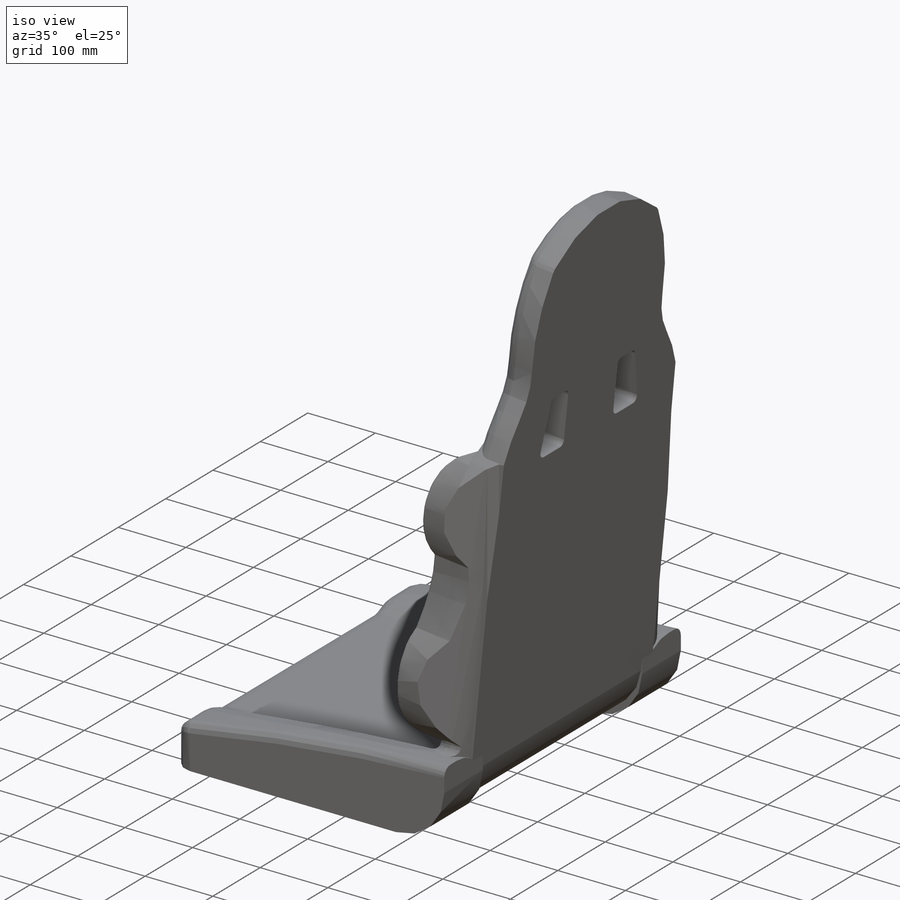
[diagram: iso view]
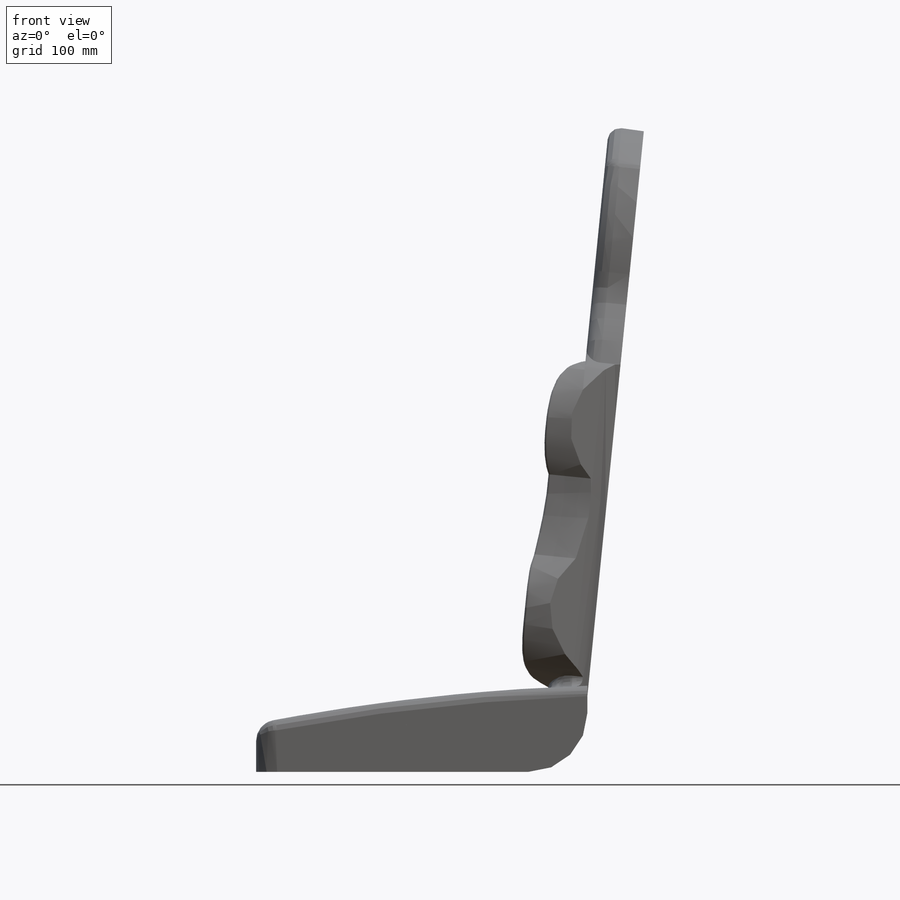
[diagram: front view]
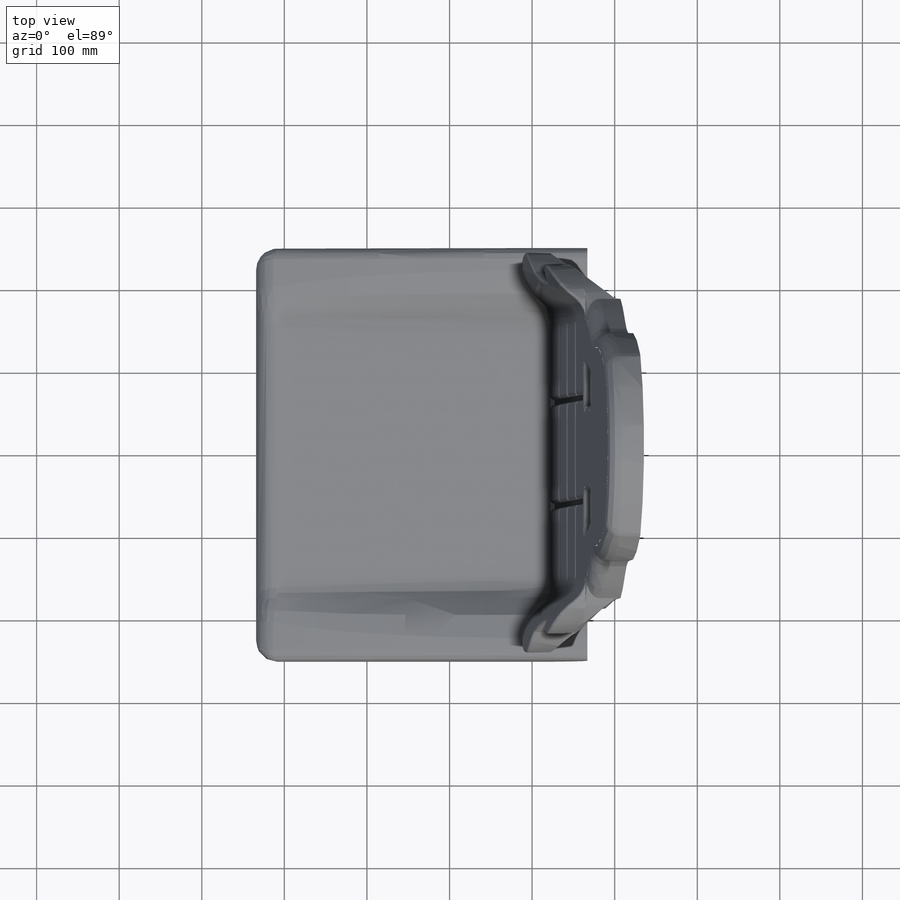
[diagram: top view]
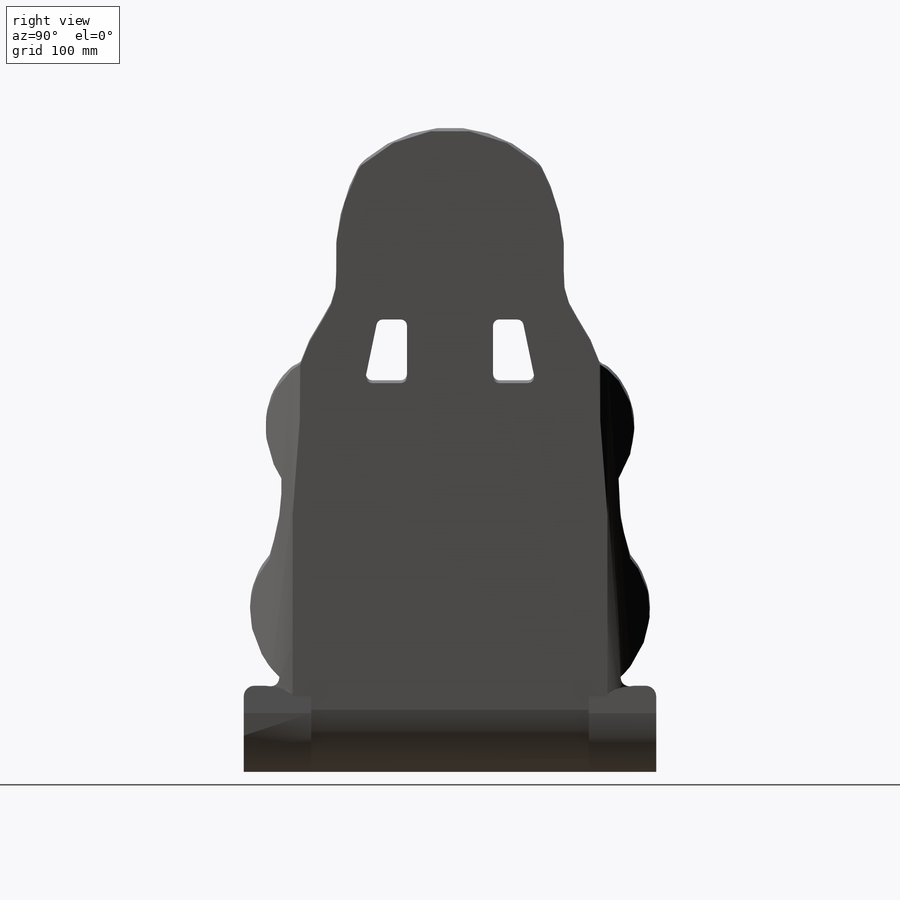
[diagram: right view]
SOLIDWORKS PART (.sldprt)
format: sldprt  version: not decoded by parser v0  size: 1,002,496 bytes
history: native  units: mm
features: fillet x21, sketch x7, extrude x3, plane x3, cut_extrude x3, chamfer x2, material x1 (+12 scaffold rows collapsed)
feature tree (52):
  scaffold x12  (default folders/planes/origin — collapsed)
  material  "Material <not specified>"
  sketch  "Sketch1"  dims[D1=~42.846977mm]
  extrude  "Boss-Extrude1"  Depth=381mm
  plane  "Plane2"
  plane  "Plane3"
  sketch  "Sketch3"  dims[c1.D1=78.74mm c1.D2=7.62mm c2.D1=~337.98566mm c2.D2=~48.206052mm c2.D3=~63.385095mm c3.D2=~77.538507mm c3.D3=~51.603356mm c4.D2=~79.178587mm c4.D3=~340.626467mm]
  cut_extrude  "Cut-Extrude2"  Depth=381mm
  fillet  "Fillet2"  Radius=198.12mm
  fillet  "Fillet3"  Radius=15.24mm
  sketch  "Sketch6"  dims[c1.D1=~323.350204mm c1.D2=~208.146804mm c2.D1=~134.245862mm]
  sketch  "Sketch8"  dims[D1=~4.787764mm]
  extrude  "Boss-Extrude3"  Depth=43.18mm
  chamfer  "Chamfer2"  Distance=66.04mm
  fillet  "Fillet4"  Radius=68.58mm
  fillet  "Fillet5"  Radius=35.56mm
  fillet  "Fillet6"  Radius=35.56mm
  fillet  "Fillet8"  Radius=25.4mm
  fillet  "Fillet10"  Radius=2.54mm
  fillet  "Fillet11"  Radius=17.78mm
  fillet  "Fillet12"  Radius=17.78mm
  plane  "Plane6"  Offset=762mm
  sketch  "Sketch9"  dims[D1=~253.402544mm]
  cut_extrude  "Cut-Extrude3"  Depth=762mm
  fillet  "Fillet14"  Radius=45.72mm
  fillet  "Fillet15"  Radius=40.64mm
  fillet  "Fillet16"  Radius=7.62mm
  sketch  "Sketch11"  dims[c1.D1=~104.27167mm c1.D2=~81.65754mm c2.D1=~4.035501mm]
  extrude  "Boss-Extrude4"  Depth=401.066mm
  chamfer  "Chamfer3"  Distance=226.06mm
  fillet  "Fillet17"  Radius=2540mm
  fillet  "Fillet19"  Radius=58.42mm
  fillet  "Fillet21"  Radius=12.7mm
  fillet  "Fillet23"  Radius=25.4mm
  fillet  "Fillet24"  Radius=25.4mm
  fillet  "Fillet25"  Radius=10.16mm
  fillet  "Fillet26"  Radius=71.12mm
  fillet  "Fillet27"  Radius=71.12mm
  sketch  "Sketch12"  dims[D1=6.35mm]
  cut_extrude  "Cut-Extrude4"  Depth=5.08mm
  fillet  "Fillet28"  Radius=5.08mm
decode coverage: 36 of 36 modeling features carry decoded parameters
note: ~ marks probable driven/reference dimensions
note: suppression state not decoded; provenance and decode notes live in map.json
